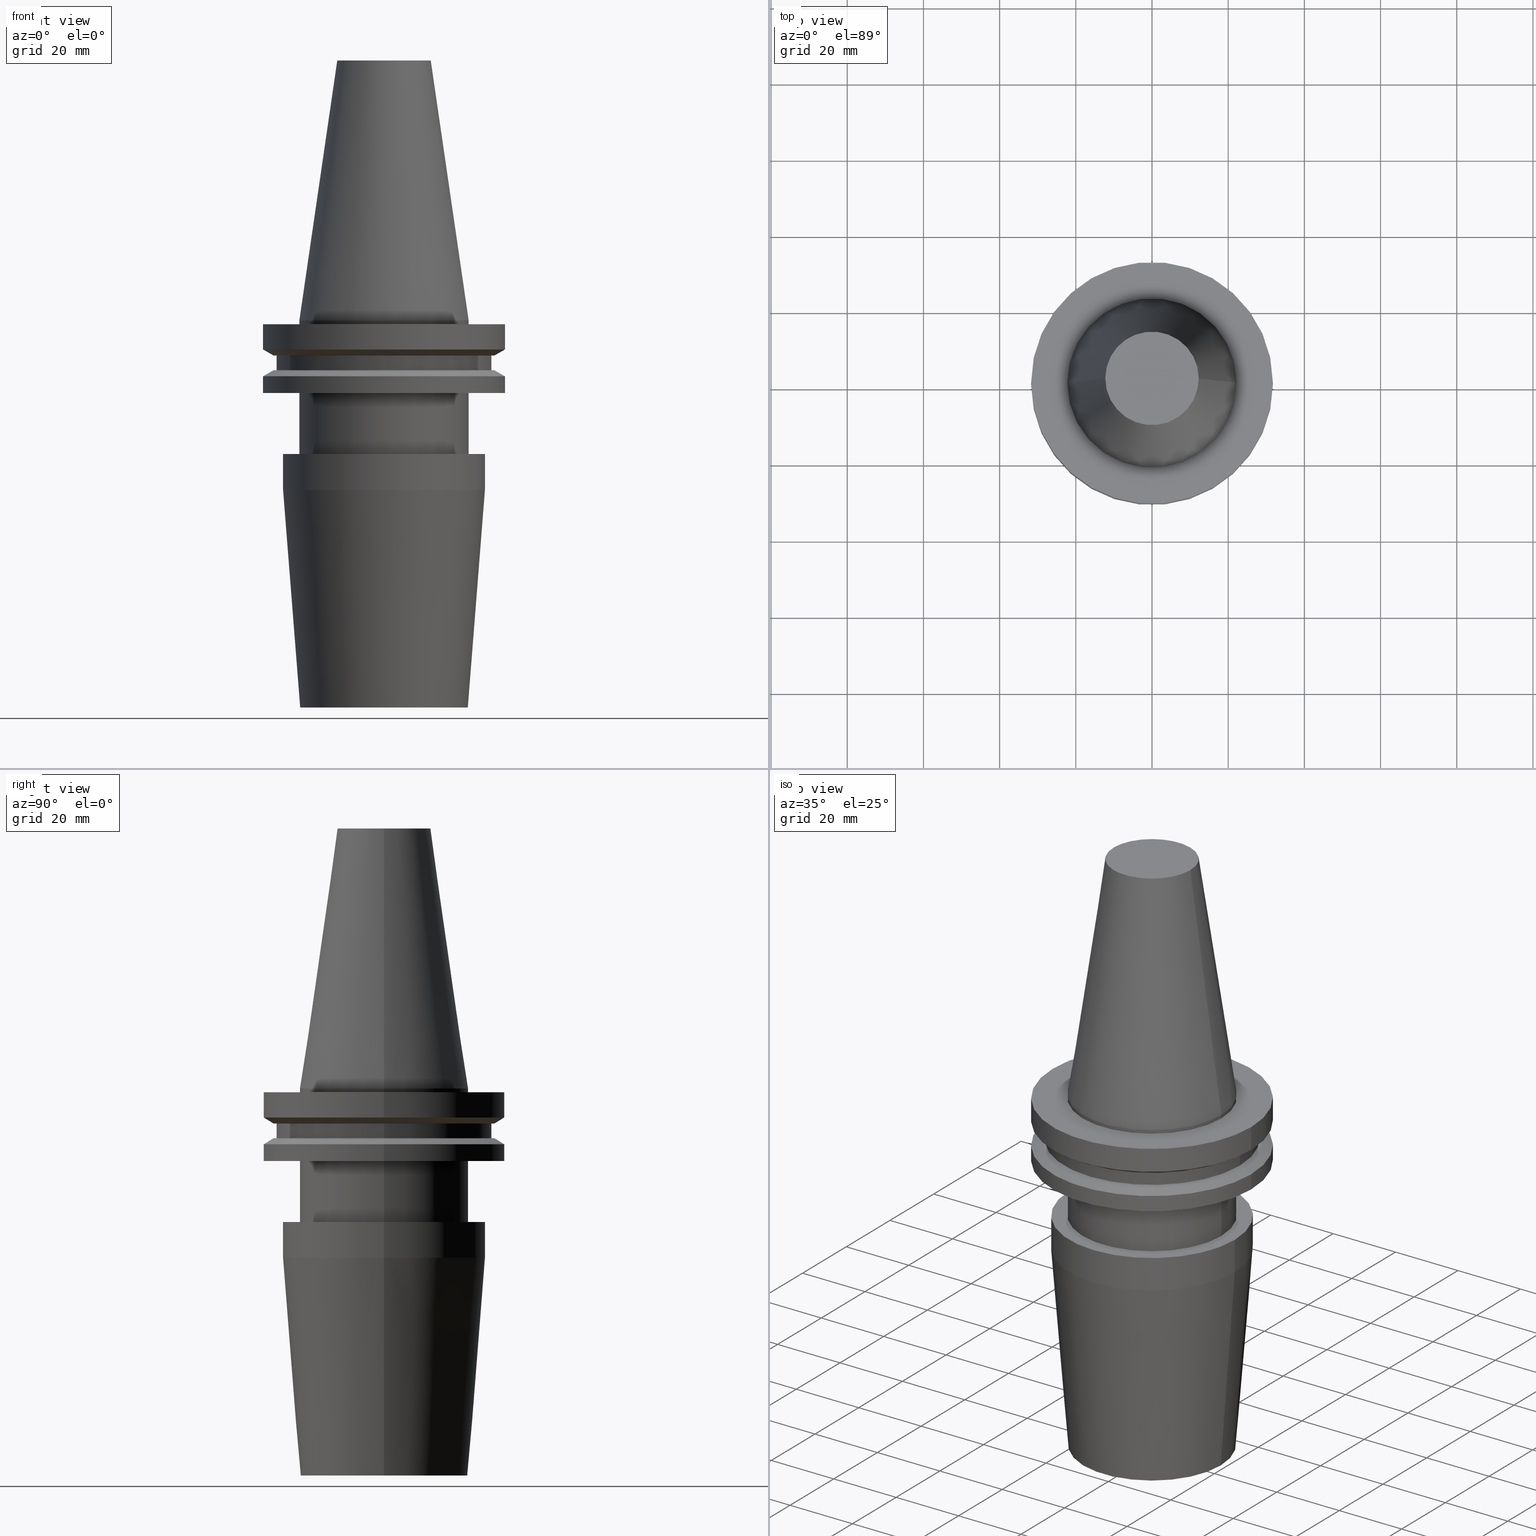
[diagram: canonical four-view strip — front | top / right | iso, engineering-drawing reading convention]
A machine part, canonical four-view strip (front | top / right | iso — engineering-drawing reading convention). The complete STEP part file that produces these views, byte-faithful:
ISO-10303-21;
HEADER;
FILE_DESCRIPTION (( 'STEP AP203' ),
    '1' );
FILE_NAME ('BCV40-SF1_000-4.STEP',
    '2022-02-23T17:24:44',
    ( '' ),
    ( '' ),
    'SwSTEP 2.0',
    'SolidWorks 2021',
    '' );
FILE_SCHEMA (( 'CONFIG_CONTROL_DESIGN' ));
ENDSEC;

DATA;
#1 = AXIS2_PLACEMENT_3D ( 'NONE', #211, #470, #730 ) ;
#2 = PLANE ( 'NONE',  #547 ) ;
#3 = CIRCLE ( 'NONE', #535, 22.22499999999999787 ) ;
#4 = EDGE_CURVE ( 'NONE', #475, #394, #430, .T. ) ;
#5 = ORIENTED_EDGE ( 'NONE', *, *, #583, .F. ) ;
#6 = ORIENTED_EDGE ( 'NONE', *, *, #664, .F. ) ;
#7 = FACE_OUTER_BOUND ( 'NONE', #214, .T. ) ;
#8 = ORIENTED_EDGE ( 'NONE', *, *, #222, .F. ) ;
#9 = EDGE_CURVE ( 'NONE', #328, #584, #636, .T. ) ;
#10 = ORIENTED_EDGE ( 'NONE', *, *, #404, .F. ) ;
#11 = CYLINDRICAL_SURFACE ( 'NONE', #655, 22.22500000000000142 ) ;
#12 = ORIENTED_EDGE ( 'NONE', *, *, #731, .T. ) ;
#13 = EDGE_CURVE ( 'NONE', #675, #370, #593, .T. ) ;
#14 = ORIENTED_EDGE ( 'NONE', *, *, #399, .T. ) ;
#15 = APPLICATION_PROTOCOL_DEFINITION ( 'international standard', 'config_control_design', 1994, #424 ) ;
#16 = DIRECTION ( 'NONE',  ( -1.000000000000000000, 0.000000000000000000, -0.000000000000000000 ) ) ;
#17 = VECTOR ( 'NONE', #761, 1000.000000000000000 ) ;
#18 = VECTOR ( 'NONE', #58, 1000.000000000000000 ) ;
#19 = VERTEX_POINT ( 'NONE', #342 ) ;
#20 = ORIENTED_EDGE ( 'NONE', *, *, #404, .T. ) ;
#21 = DIRECTION ( 'NONE',  ( 1.000000000000000000, 0.000000000000000000, 0.000000000000000000 ) ) ;
#22 = APPROVAL ( #482, 'UNSPECIFIED' ) ;
#23 = CARTESIAN_POINT ( 'NONE',  ( -12.27178102086201150, 0.000000000000000000, 68.25000000000000000 ) ) ;
#24 = ORIENTED_EDGE ( 'NONE', *, *, #703, .T. ) ;
#25 = DIRECTION ( 'NONE',  ( 1.000000000000000000, 0.000000000000000000, 0.000000000000000000 ) ) ;
#26 = DIRECTION ( 'NONE',  ( -0.000000000000000000, -0.000000000000000000, 1.000000000000000000 ) ) ;
#27 = EDGE_LOOP ( 'NONE', ( #347, #461, #481, #83 ) ) ;
#28 = CARTESIAN_POINT ( 'NONE',  ( -22.22500000000000142, 2.721777511104992849E-15, 68.25000000000000000 ) ) ;
#29 = ADVANCED_FACE ( 'NONE', ( #541 ), #153, .T. ) ;
#30 = DIRECTION ( 'NONE',  ( 0.000000000000000000, 0.000000000000000000, -1.000000000000000000 ) ) ;
#31 = AXIS2_PLACEMENT_3D ( 'NONE', #808, #226, #425 ) ;
#32 = EDGE_CURVE ( 'NONE', #500, #543, #412, .T. ) ;
#33 = CIRCLE ( 'NONE', #102, 31.75000000000000000 ) ;
#34 = CALENDAR_DATE ( 2022, 23, 2 ) ;
#35 = CARTESIAN_POINT ( 'NONE',  ( 0.000000000000000000, 0.000000000000000000, -9.205000000000005400 ) ) ;
#36 = EDGE_CURVE ( 'NONE', #566, #588, #526, .T. ) ;
#37 = VECTOR ( 'NONE', #366, 1000.000000000000000 ) ;
#38 = DIRECTION ( 'NONE',  ( 0.000000000000000000, -0.000000000000000000, 1.000000000000000000 ) ) ;
#39 = DIRECTION ( 'NONE',  ( -0.000000000000000000, -0.000000000000000000, 1.000000000000000000 ) ) ;
#40 = VECTOR ( 'NONE', #520, 1000.000000000000000 ) ;
#41 = ORIENTED_EDGE ( 'NONE', *, *, #679, .T. ) ;
#42 = PERSON_AND_ORGANIZATION ( #341, #242 ) ;
#43 = FACE_OUTER_BOUND ( 'NONE', #204, .T. ) ;
#44 = AXIS2_PLACEMENT_3D ( 'NONE', #824, #30, #829 ) ;
#45 = FACE_OUTER_BOUND ( 'NONE', #635, .T. ) ;
#46 = COORDINATED_UNIVERSAL_TIME_OFFSET ( 6, 0, .BEHIND. ) ;
#47 = AXIS2_PLACEMENT_3D ( 'NONE', #272, #277, #223 ) ;
#48 = SECURITY_CLASSIFICATION ( '', '', #763 ) ;
#49 = CARTESIAN_POINT ( 'NONE',  ( 0.000000000000000000, 0.000000000000000000, 0.000000000000000000 ) ) ;
#50 = CC_DESIGN_PERSON_AND_ORGANIZATION_ASSIGNMENT ( #831, #694, ( #314 ) ) ;
#51 = DIRECTION ( 'NONE',  ( -0.000000000000000000, -0.000000000000000000, 1.000000000000000000 ) ) ;
#52 = VERTEX_POINT ( 'NONE', #625 ) ;
#53 = DATE_AND_TIME ( #514, #164 ) ;
#54 = CARTESIAN_POINT ( 'NONE',  ( 12.69999999999998685, 0.000000000000000000, -54.59999999999999432 ) ) ;
#55 = CARTESIAN_POINT ( 'NONE',  ( -22.22499999999999787, 2.721777511104992454E-15, -35.04999999999999716 ) ) ;
#56 = AXIS2_PLACEMENT_3D ( 'NONE', #546, #729, #402 ) ;
#57 = ORIENTED_EDGE ( 'NONE', *, *, #814, .F. ) ;
#58 = DIRECTION ( 'NONE',  ( -0.000000000000000000, -0.000000000000000000, 1.000000000000000000 ) ) ;
#59 = CARTESIAN_POINT ( 'NONE',  ( 0.000000000000000000, 0.000000000000000000, -14.65472339340266572 ) ) ;
#60 = EDGE_LOOP ( 'NONE', ( #576, #465 ) ) ;
#61 = DIRECTION ( 'NONE',  ( 0.000000000000000000, -0.000000000000000000, 1.000000000000000000 ) ) ;
#62 = CIRCLE ( 'NONE', #550, 28.17999999999999972 ) ;
#63 = DIRECTION ( 'NONE',  ( 1.000000000000000000, 0.000000000000000000, 0.000000000000000000 ) ) ;
#64 = ORIENTED_EDGE ( 'NONE', *, *, #839, .F. ) ;
#65 = DIRECTION ( 'NONE',  ( -0.000000000000000000, -0.000000000000000000, 1.000000000000000000 ) ) ;
#66 = CARTESIAN_POINT ( 'NONE',  ( 22.00000000000000000, 0.000000000000000000, -101.5999999999999943 ) ) ;
#67 = ORIENTED_EDGE ( 'NONE', *, *, #339, .F. ) ;
#68 = AXIS2_PLACEMENT_3D ( 'NONE', #237, #433, #369 ) ;
#69 = CARTESIAN_POINT ( 'NONE',  ( -22.22500000000000142, 2.721777511104992849E-15, 68.25000000000000000 ) ) ;
#70 = CONICAL_SURFACE ( 'NONE', #44, 31.75000000000000000, 1.047197551196597853 ) ;
#71 = FACE_OUTER_BOUND ( 'NONE', #86, .T. ) ;
#72 = DIRECTION ( 'NONE',  ( -0.000000000000000000, -0.000000000000000000, 1.000000000000000000 ) ) ;
#73 = AXIS2_PLACEMENT_3D ( 'NONE', #504, #627, #97 ) ;
#74 = CARTESIAN_POINT ( 'NONE',  ( 0.000000000000000000, 0.000000000000000000, -13.05499999999999794 ) ) ;
#75 = CIRCLE ( 'NONE', #47, 26.50000000000000000 ) ;
#76 = EDGE_CURVE ( 'NONE', #358, #798, #108, .T. ) ;
#77 = CARTESIAN_POINT ( 'NONE',  ( 0.000000000000000000, 28.97919780457007732, -9.204999999999996518 ) ) ;
#78 = VERTEX_POINT ( 'NONE', #175 ) ;
#79 = ORIENTED_EDGE ( 'NONE', *, *, #431, .T. ) ;
#80 = DIRECTION ( 'NONE',  ( -0.000000000000000000, -0.000000000000000000, 1.000000000000000000 ) ) ;
#81 = ADVANCED_FACE ( 'NONE', ( #568 ), #414, .T. ) ;
#82 = ORIENTED_EDGE ( 'NONE', *, *, #703, .F. ) ;
#83 = ORIENTED_EDGE ( 'NONE', *, *, #121, .F. ) ;
#84 = LINE ( 'NONE', #157, #88 ) ;
#85 = ORIENTED_EDGE ( 'NONE', *, *, #739, .T. ) ;
#86 = EDGE_LOOP ( 'NONE', ( #238, #154 ) ) ;
#87 = DIRECTION ( 'NONE',  ( 1.000000000000000000, 0.000000000000000000, 0.000000000000000000 ) ) ;
#88 = VECTOR ( 'NONE', #147, 999.9999999999998863 ) ;
#89 = CIRCLE ( 'NONE', #448, 31.75000000000000000 ) ;
#90 = EDGE_LOOP ( 'NONE', ( #834, #853, #280, #557 ) ) ;
#91 = ADVANCED_FACE ( 'NONE', ( #45 ), #562, .T. ) ;
#92 = CARTESIAN_POINT ( 'NONE',  ( -26.49999999999999645, 3.245314017740485370E-15, -44.42207868720777952 ) ) ;
#93 = CARTESIAN_POINT ( 'NONE',  ( 0.000000000000000000, 0.000000000000000000, -9.205000000000005400 ) ) ;
#94 = ORIENTED_EDGE ( 'NONE', *, *, #828, .T. ) ;
#95 = DIRECTION ( 'NONE',  ( -0.000000000000000000, -0.000000000000000000, 1.000000000000000000 ) ) ;
#96 = EDGE_CURVE ( 'NONE', #798, #678, #634, .T. ) ;
#97 = DIRECTION ( 'NONE',  ( 1.000000000000000000, 0.000000000000000000, 0.000000000000000000 ) ) ;
#98 = ORIENTED_EDGE ( 'NONE', *, *, #399, .F. ) ;
#99 = PERSON_AND_ORGANIZATION_ROLE ( 'creator' ) ;
#100 = DIRECTION ( 'NONE',  ( -0.000000000000000000, -0.000000000000000000, 1.000000000000000000 ) ) ;
#101 = CIRCLE ( 'NONE', #813, 12.69999999999999218 ) ;
#102 = AXIS2_PLACEMENT_3D ( 'NONE', #747, #559, #544 ) ;
#103 = CARTESIAN_POINT ( 'NONE',  ( 0.000000000000000000, 0.000000000000000000, -54.59999999999999432 ) ) ;
#104 = UNCERTAINTY_MEASURE_WITH_UNIT (LENGTH_MEASURE( 1.000000000000000082E-05 ), #495, 'distance_accuracy_value', 'NONE');
#105 = DATE_AND_TIME ( #510, #498 ) ;
#106 = AXIS2_PLACEMENT_3D ( 'NONE', #684, #469, #140 ) ;
#107 = CARTESIAN_POINT ( 'NONE',  ( 22.22500000000000142, 0.000000000000000000, 68.25000000000000000 ) ) ;
#108 = CIRCLE ( 'NONE', #68, 28.17999999999999972 ) ;
#109 = FACE_OUTER_BOUND ( 'NONE', #413, .T. ) ;
#110 = CONICAL_SURFACE ( 'NONE', #706, 28.97919780457007732, 1.047197551196598297 ) ;
#111 = APPROVAL_DATE_TIME ( #835, #259 ) ;
#112 = EDGE_CURVE ( 'NONE', #530, #543, #633, .T. ) ;
#113 = CARTESIAN_POINT ( 'NONE',  ( 31.75000000000000000, 0.000000000000000000, -14.65472339340266572 ) ) ;
#114 = AXIS2_PLACEMENT_3D ( 'NONE', #692, #360, #240 ) ;
#115 = CARTESIAN_POINT ( 'NONE',  ( -12.69999999999999218, 1.555301434917137644E-15, -101.5999999999999943 ) ) ;
#116 = CONICAL_SURFACE ( 'NONE', #446, 22.22500000000000142, 0.1448138465474119174 ) ;
#117 = ORIENTED_EDGE ( 'NONE', *, *, #152, .F. ) ;
#118 = DATE_AND_TIME ( #34, #773 ) ;
#119 = VECTOR ( 'NONE', #338, 1000.000000000000000 ) ;
#120 = FACE_OUTER_BOUND ( 'NONE', #170, .T. ) ;
#121 = EDGE_CURVE ( 'NONE', #52, #793, #767, .T. ) ;
#122 = DIRECTION ( 'NONE',  ( 1.000000000000000000, 0.000000000000000000, 0.000000000000000000 ) ) ;
#123 = ORIENTED_EDGE ( 'NONE', *, *, #166, .T. ) ;
#124 = DIRECTION ( 'NONE',  ( -0.000000000000000000, -0.000000000000000000, 1.000000000000000000 ) ) ;
#125 = EDGE_CURVE ( 'NONE', #258, #386, #156, .T. ) ;
#126 = CC_DESIGN_DATE_AND_TIME_ASSIGNMENT ( #316, #321, ( #180 ) ) ;
#127 = CARTESIAN_POINT ( 'NONE',  ( -22.00000000000000000, 2.694222958124176809E-15, -101.5999999999999943 ) ) ;
#128 = AXIS2_PLACEMENT_3D ( 'NONE', #695, #302, #630 ) ;
#129 = ORIENTED_EDGE ( 'NONE', *, *, #794, .T. ) ;
#130 = LINE ( 'NONE', #727, #842 ) ;
#131 = CARTESIAN_POINT ( 'NONE',  ( 0.000000000000000000, 0.000000000000000000, -35.04999999999999716 ) ) ;
#132 = EDGE_LOOP ( 'NONE', ( #85, #79, #291, #598 ) ) ;
#133 = DIRECTION ( 'NONE',  ( 1.000000000000000000, 0.000000000000000000, 0.000000000000000000 ) ) ;
#134 = AXIS2_PLACEMENT_3D ( 'NONE', #49, #854, #267 ) ;
#135 = VECTOR ( 'NONE', #620, 1000.000000000000000 ) ;
#136 = DIRECTION ( 'NONE',  ( -1.000000000000000000, 0.000000000000000000, 0.000000000000000000 ) ) ;
#137 = EDGE_LOOP ( 'NONE', ( #306, #199 ) ) ;
#138 = DIRECTION ( 'NONE',  ( -0.000000000000000000, -0.000000000000000000, 1.000000000000000000 ) ) ;
#139 = CYLINDRICAL_SURFACE ( 'NONE', #602, 31.75000000000000000 ) ;
#140 = DIRECTION ( 'NONE',  ( 1.000000000000000000, 0.000000000000000000, 0.000000000000000000 ) ) ;
#141 = DIRECTION ( 'NONE',  ( 1.000000000000000000, 0.000000000000000000, 0.000000000000000000 ) ) ;
#142 = ADVANCED_FACE ( 'NONE', ( #575 ), #70, .T. ) ;
#143 = DIRECTION ( 'NONE',  ( -0.000000000000000000, -0.000000000000000000, 1.000000000000000000 ) ) ;
#144 = ORIENTED_EDGE ( 'NONE', *, *, #36, .T. ) ;
#145 = CIRCLE ( 'NONE', #241, 28.97919780457007732 ) ;
#146 = EDGE_CURVE ( 'NONE', #543, #530, #748, .T. ) ;
#147 = DIRECTION ( 'NONE',  ( 0.1443082272672999711, 1.767266086135276757E-17, -0.9895327864921755756 ) ) ;
#148 = ORIENTED_EDGE ( 'NONE', *, *, #273, .F. ) ;
#149 = ORIENTED_EDGE ( 'NONE', *, *, #112, .T. ) ;
#150 = MECHANICAL_CONTEXT ( 'NONE', #376, 'mechanical' ) ;
#151 = LINE ( 'NONE', #734, #287 ) ;
#152 = EDGE_CURVE ( 'NONE', #357, #500, #708, .T. ) ;
#153 = CONICAL_SURFACE ( 'NONE', #849, 22.00000000000000000, 0.07853981633973651511 ) ;
#154 = ORIENTED_EDGE ( 'NONE', *, *, #125, .F. ) ;
#155 = ORIENTED_EDGE ( 'NONE', *, *, #36, .F. ) ;
#156 = CIRCLE ( 'NONE', #745, 28.97919780457007732 ) ;
#157 = CARTESIAN_POINT ( 'NONE',  ( 22.22500000000000142, 2.721777511104992849E-15, 0.000000000000000000 ) ) ;
#158 = ORIENTED_EDGE ( 'NONE', *, *, #4, .F. ) ;
#159 = ORIENTED_EDGE ( 'NONE', *, *, #9, .T. ) ;
#160 = DIRECTION ( 'NONE',  ( 1.000000000000000000, 0.000000000000000000, 0.000000000000000000 ) ) ;
#161 = AXIS2_PLACEMENT_3D ( 'NONE', #643, #769, #198 ) ;
#162 = CARTESIAN_POINT ( 'NONE',  ( -31.75000000000000000, 3.888253587292846476E-15, -1.000000000000000888 ) ) ;
#163 = AXIS2_PLACEMENT_3D ( 'NONE', #419, #356, #16 ) ;
#164 = LOCAL_TIME ( 11, 24, 44.00000000000000000, #645 ) ;
#165 = DIRECTION ( 'NONE',  ( 1.000000000000000000, 0.000000000000000000, 0.000000000000000000 ) ) ;
#166 = EDGE_CURVE ( 'NONE', #320, #690, #600, .T. ) ;
#167 = VERTEX_POINT ( 'NONE', #428 ) ;
#168 = ADVANCED_FACE ( 'NONE', ( #762 ), #564, .T. ) ;
#169 = DIRECTION ( 'NONE',  ( -0.000000000000000000, -0.000000000000000000, 1.000000000000000000 ) ) ;
#170 = EDGE_LOOP ( 'NONE', ( #64, #755, #802, #613 ) ) ;
#171 = APPROVAL_STATUS ( 'not_yet_approved' ) ;
#172 = ADVANCED_FACE ( 'NONE', ( #689 ), #110, .T. ) ;
#173 = CARTESIAN_POINT ( 'NONE',  ( 12.69999999999998863, 0.000000000000000000, 0.000000000000000000 ) ) ;
#174 = ADVANCED_FACE ( 'NONE', ( #757 ), #324, .T. ) ;
#175 = CARTESIAN_POINT ( 'NONE',  ( 22.00000000000000000, 0.000000000000000000, -101.5999999999999943 ) ) ;
#176 = CIRCLE ( 'NONE', #393, 22.22499999999999787 ) ;
#177 = AXIS2_PLACEMENT_3D ( 'NONE', #225, #95, #676 ) ;
#178 = CARTESIAN_POINT ( 'NONE',  ( 0.000000000000000000, 0.000000000000000000, 68.25000000000000000 ) ) ;
#179 = DIRECTION ( 'NONE',  ( -1.000000000000000000, 0.000000000000000000, 0.000000000000000000 ) ) ;
#180 = PRODUCT_DEFINITION ( 'UNKNOWN', '', #314, #248 ) ;
#181 = APPROVAL_STATUS ( 'not_yet_approved' ) ;
#182 = DIRECTION ( 'NONE',  ( 1.000000000000000000, 0.000000000000000000, 0.000000000000000000 ) ) ;
#183 = CARTESIAN_POINT ( 'NONE',  ( 0.000000000000000000, 0.000000000000000000, 68.25000000000000000 ) ) ;
#184 = CARTESIAN_POINT ( 'NONE',  ( 0.000000000000000000, 31.74999999999999289, -19.04999999999999716 ) ) ;
#185 = CARTESIAN_POINT ( 'NONE',  ( 0.000000000000000000, 0.000000000000000000, 0.000000000000000000 ) ) ;
#186 = VECTOR ( 'NONE', #411, 1000.000000000000000 ) ;
#187 = VERTEX_POINT ( 'NONE', #439 ) ;
#188 = APPROVAL_PERSON_ORGANIZATION ( #549, #22, #418 ) ;
#189 = ADVANCED_FACE ( 'NONE', ( #109 ), #516, .F. ) ;
#190 = DIRECTION ( 'NONE',  ( 1.000000000000000000, 0.000000000000000000, 0.000000000000000000 ) ) ;
#191 = EDGE_CURVE ( 'NONE', #187, #473, #840, .T. ) ;
#192 = DIRECTION ( 'NONE',  ( 0.000000000000000000, 0.000000000000000000, -1.000000000000000000 ) ) ;
#193 = ORIENTED_EDGE ( 'NONE', *, *, #647, .T. ) ;
#194 = LINE ( 'NONE', #69, #381 ) ;
#195 = CARTESIAN_POINT ( 'NONE',  ( 0.000000000000000000, 0.000000000000000000, -9.205000000000005400 ) ) ;
#196 = EDGE_LOOP ( 'NONE', ( #12, #554, #505, #10 ) ) ;
#197 = FACE_OUTER_BOUND ( 'NONE', #137, .T. ) ;
#198 = DIRECTION ( 'NONE',  ( 1.000000000000000000, 0.000000000000000000, 0.000000000000000000 ) ) ;
#199 = ORIENTED_EDGE ( 'NONE', *, *, #552, .F. ) ;
#200 = LINE ( 'NONE', #523, #355 ) ;
#201 = AXIS2_PLACEMENT_3D ( 'NONE', #518, #438, #255 ) ;
#202 = AXIS2_PLACEMENT_3D ( 'NONE', #396, #850, #25 ) ;
#203 = LINE ( 'NONE', #612, #186 ) ;
#204 = EDGE_LOOP ( 'NONE', ( #266, #723, #538, #662 ) ) ;
#205 = CC_DESIGN_PERSON_AND_ORGANIZATION_ASSIGNMENT ( #577, #304, ( #314 ) ) ;
#206 = DIRECTION ( 'NONE',  ( 1.000000000000000000, 0.000000000000000000, 0.000000000000000000 ) ) ;
#207 = DIRECTION ( 'NONE',  ( 0.000000000000000000, -0.000000000000000000, 1.000000000000000000 ) ) ;
#208 = EDGE_LOOP ( 'NONE', ( #746, #821 ) ) ;
#209 = EDGE_CURVE ( 'NONE', #509, #784, #807, .T. ) ;
#210 = EDGE_LOOP ( 'NONE', ( #649, #809, #742, #522 ) ) ;
#211 = CARTESIAN_POINT ( 'NONE',  ( 0.000000000000000000, 0.000000000000000000, -44.42207868720777952 ) ) ;
#212 = CARTESIAN_POINT ( 'NONE',  ( 28.97919780457008088, 3.718590885307660666E-15, -13.05499999999999794 ) ) ;
#213 = ORIENTED_EDGE ( 'NONE', *, *, #846, .T. ) ;
#214 = EDGE_LOOP ( 'NONE', ( #159, #290 ) ) ;
#215 = DIRECTION ( 'NONE',  ( 0.000000000000000000, 0.000000000000000000, 1.000000000000000000 ) ) ;
#216 = VECTOR ( 'NONE', #715, 1000.000000000000000 ) ;
#217 = AXIS2_PLACEMENT_3D ( 'NONE', #390, #585, #654 ) ;
#218 = CARTESIAN_POINT ( 'NONE',  ( 0.000000000000000000, 0.000000000000000000, 68.25000000000000000 ) ) ;
#219 = VERTEX_POINT ( 'NONE', #55 ) ;
#220 = ORIENTED_EDGE ( 'NONE', *, *, #552, .T. ) ;
#221 = CARTESIAN_POINT ( 'NONE',  ( -28.17999999999999972, 3.451054679997241634E-15, 68.25000000000000000 ) ) ;
#222 = EDGE_CURVE ( 'NONE', #610, #475, #452, .T. ) ;
#223 = DIRECTION ( 'NONE',  ( 1.000000000000000000, 0.000000000000000000, 0.000000000000000000 ) ) ;
#224 = EDGE_LOOP ( 'NONE', ( #6, #737 ) ) ;
#225 = CARTESIAN_POINT ( 'NONE',  ( 0.000000000000000000, 0.000000000000000000, 68.25000000000000000 ) ) ;
#226 = DIRECTION ( 'NONE',  ( -0.000000000000000000, -0.000000000000000000, 1.000000000000000000 ) ) ;
#227 = ORIENTED_EDGE ( 'NONE', *, *, #166, .F. ) ;
#228 = CARTESIAN_POINT ( 'NONE',  ( 0.000000000000000000, 0.000000000000000000, 68.25000000000000000 ) ) ;
#229 = AXIS2_PLACEMENT_3D ( 'NONE', #372, #245, #638 ) ;
#230 = AXIS2_PLACEMENT_3D ( 'NONE', #611, #626, #624 ) ;
#231 = CARTESIAN_POINT ( 'NONE',  ( 0.000000000000000000, 0.000000000000000000, -19.04999999999999716 ) ) ;
#232 = VERTEX_POINT ( 'NONE', #247 ) ;
#233 = CARTESIAN_POINT ( 'NONE',  ( -31.75000000000000000, 3.888253587292846476E-15, -14.65472339340266572 ) ) ;
#234 = CARTESIAN_POINT ( 'NONE',  ( 0.000000000000000000, 0.000000000000000000, 68.25000000000000000 ) ) ;
#235 = SHAPE_DEFINITION_REPRESENTATION ( #558, #377 ) ;
#236 = EDGE_CURVE ( 'NONE', #78, #394, #397, .T. ) ;
#237 = CARTESIAN_POINT ( 'NONE',  ( 0.000000000000000000, 0.000000000000000000, -13.05499999999999794 ) ) ;
#238 = ORIENTED_EDGE ( 'NONE', *, *, #279, .F. ) ;
#239 = PLANE ( 'NONE',  #855 ) ;
#240 = DIRECTION ( 'NONE',  ( 1.000000000000000000, 0.000000000000000000, 0.000000000000000000 ) ) ;
#241 = AXIS2_PLACEMENT_3D ( 'NONE', #195, #459, #651 ) ;
#242 = ORGANIZATION ( 'UNSPECIFIED', 'UNSPECIFIED', '' ) ;
#243 = EDGE_LOOP ( 'NONE', ( #123, #94, #429, #801 ) ) ;
#244 = COORDINATED_UNIVERSAL_TIME_OFFSET ( 6, 0, .BEHIND. ) ;
#245 = DIRECTION ( 'NONE',  ( -0.000000000000000000, -0.000000000000000000, 1.000000000000000000 ) ) ;
#246 = EDGE_CURVE ( 'NONE', #78, #610, #661, .T. ) ;
#247 = CARTESIAN_POINT ( 'NONE',  ( -28.17999999999999972, 3.451054679997241634E-15, -9.204999999999991189 ) ) ;
#248 = DESIGN_CONTEXT ( 'detailed design', #424, 'design' ) ;
#249 = EDGE_LOOP ( 'NONE', ( #148, #346, #14, #213 ) ) ;
#250 = PERSON_AND_ORGANIZATION ( #341, #242 ) ;
#251 = DIRECTION ( 'NONE',  ( 1.000000000000000000, 0.000000000000000000, 0.000000000000000000 ) ) ;
#252 = CYLINDRICAL_SURFACE ( 'NONE', #422, 12.69999999999998863 ) ;
#253 = EDGE_LOOP ( 'NONE', ( #315, #617 ) ) ;
#254 = EDGE_CURVE ( 'NONE', #219, #700, #176, .T. ) ;
#255 = DIRECTION ( 'NONE',  ( 1.000000000000000000, 0.000000000000000000, 0.000000000000000000 ) ) ;
#256 = CARTESIAN_POINT ( 'NONE',  ( 26.49999999999999645, 0.000000000000000000, 0.000000000000000000 ) ) ;
#257 = AXIS2_PLACEMENT_3D ( 'NONE', #847, #587, #385 ) ;
#258 = VERTEX_POINT ( 'NONE', #524 ) ;
#259 = APPROVAL ( #181, 'UNSPECIFIED' ) ;
#260 = CARTESIAN_POINT ( 'NONE',  ( 28.97919780457007732, 0.000000000000000000, -9.205000000000005400 ) ) ;
#261 = DIRECTION ( 'NONE',  ( 0.07845909572783665853, 0.000000000000000000, 0.9969173337331286300 ) ) ;
#262 = EDGE_LOOP ( 'NONE', ( #332, #155, #361, #364 ) ) ;
#263 = DIRECTION ( 'NONE',  ( -0.000000000000000000, -0.000000000000000000, 1.000000000000000000 ) ) ;
#264 = AXIS2_PLACEMENT_3D ( 'NONE', #754, #100, #702 ) ;
#265 = FACE_OUTER_BOUND ( 'NONE', #262, .T. ) ;
#266 = ORIENTED_EDGE ( 'NONE', *, *, #756, .F. ) ;
#267 = DIRECTION ( 'NONE',  ( 1.000000000000000000, 0.000000000000000000, 0.000000000000000000 ) ) ;
#268 = CARTESIAN_POINT ( 'NONE',  ( 26.49999999999999645, 0.000000000000000000, -44.42207868720777952 ) ) ;
#269 = ORIENTED_EDGE ( 'NONE', *, *, #209, .F. ) ;
#270 = CARTESIAN_POINT ( 'NONE',  ( -28.97919780457008088, 0.000000000000000000, -13.05499999999999794 ) ) ;
#271 = AXIS2_PLACEMENT_3D ( 'NONE', #764, #293, #450 ) ;
#272 = CARTESIAN_POINT ( 'NONE',  ( 0.000000000000000000, 0.000000000000000000, -35.04999999999999716 ) ) ;
#273 = EDGE_CURVE ( 'NONE', #370, #509, #778, .T. ) ;
#274 = ORIENTED_EDGE ( 'NONE', *, *, #359, .T. ) ;
#275 = DIRECTION ( 'NONE',  ( -0.000000000000000000, -0.000000000000000000, 1.000000000000000000 ) ) ;
#276 = AXIS2_PLACEMENT_3D ( 'NONE', #59, #391, #319 ) ;
#277 = DIRECTION ( 'NONE',  ( -0.000000000000000000, -0.000000000000000000, 1.000000000000000000 ) ) ;
#278 = VERTEX_POINT ( 'NONE', #843 ) ;
#279 = EDGE_CURVE ( 'NONE', #386, #258, #145, .T. ) ;
#280 = ORIENTED_EDGE ( 'NONE', *, *, #739, .F. ) ;
#281 = CC_DESIGN_PERSON_AND_ORGANIZATION_ASSIGNMENT ( #639, #99, ( #180 ) ) ;
#282 = LINE ( 'NONE', #743, #815 ) ;
#283 = CYLINDRICAL_SURFACE ( 'NONE', #696, 22.22500000000000142 ) ;
#284 = ORIENTED_EDGE ( 'NONE', *, *, #711, .T. ) ;
#285 = ORIENTED_EDGE ( 'NONE', *, *, #427, .T. ) ;
#286 = CARTESIAN_POINT ( 'NONE',  ( 0.000000000000000000, 0.000000000000000000, -35.04999999999999716 ) ) ;
#287 = VECTOR ( 'NONE', #479, 1000.000000000000000 ) ;
#288 = CIRCLE ( 'NONE', #230, 26.50000000000000000 ) ;
#289 = FACE_OUTER_BOUND ( 'NONE', #614, .T. ) ;
#290 = ORIENTED_EDGE ( 'NONE', *, *, #466, .T. ) ;
#291 = ORIENTED_EDGE ( 'NONE', *, *, #823, .F. ) ;
#292 = FACE_OUTER_BOUND ( 'NONE', #486, .T. ) ;
#293 = DIRECTION ( 'NONE',  ( -0.000000000000000000, -0.000000000000000000, 1.000000000000000000 ) ) ;
#294 = ORIENTED_EDGE ( 'NONE', *, *, #851, .T. ) ;
#295 = EDGE_LOOP ( 'NONE', ( #117, #24, #149, #816 ) ) ;
#296 = CARTESIAN_POINT ( 'NONE',  ( 28.17999999999999972, 0.000000000000000000, -13.05499999999999794 ) ) ;
#297 = CARTESIAN_POINT ( 'NONE',  ( 28.17999999999999972, 0.000000000000000000, 68.25000000000000000 ) ) ;
#298 = ORIENTED_EDGE ( 'NONE', *, *, #647, .F. ) ;
#299 = DIRECTION ( 'NONE',  ( -0.000000000000000000, -0.000000000000000000, 1.000000000000000000 ) ) ;
#300 = CIRCLE ( 'NONE', #365, 31.74999999999999289 ) ;
#301 = APPROVAL_PERSON_ORGANIZATION ( #42, #573, #374 ) ;
#302 = DIRECTION ( 'NONE',  ( -0.000000000000000000, -0.000000000000000000, 1.000000000000000000 ) ) ;
#303 = ADVANCED_FACE ( 'NONE', ( #582 ), #327, .T. ) ;
#304 = PERSON_AND_ORGANIZATION_ROLE ( 'creator' ) ;
#305 = DIRECTION ( 'NONE',  ( 1.000000000000000000, 0.000000000000000000, 0.000000000000000000 ) ) ;
#306 = ORIENTED_EDGE ( 'NONE', *, *, #246, .F. ) ;
#307 = LINE ( 'NONE', #310, #572 ) ;
#308 = DIRECTION ( 'NONE',  ( 1.000000000000000000, 0.000000000000000000, 0.000000000000000000 ) ) ;
#309 = COORDINATED_UNIVERSAL_TIME_OFFSET ( 6, 0, .BEHIND. ) ;
#310 = CARTESIAN_POINT ( 'NONE',  ( -22.22500000000000142, 0.000000000000000000, 0.000000000000000000 ) ) ;
#311 = CC_DESIGN_PERSON_AND_ORGANIZATION_ASSIGNMENT ( #250, #440, ( #48 ) ) ;
#312 = DIRECTION ( 'NONE',  ( -0.000000000000000000, -0.000000000000000000, 1.000000000000000000 ) ) ;
#313 = CIRCLE ( 'NONE', #641, 22.00000000000000000 ) ;
#314 = PRODUCT_DEFINITION_FORMATION_WITH_SPECIFIED_SOURCE ( 'ANY', '', #817, .NOT_KNOWN. ) ;
#315 = ORIENTED_EDGE ( 'NONE', *, *, #823, .T. ) ;
#316 = DATE_AND_TIME ( #818, #670 ) ;
#317 = DIRECTION ( 'NONE',  ( 0.000000000000000000, 0.000000000000000000, -1.000000000000000000 ) ) ;
#318 = ADVANCED_FACE ( 'NONE', ( #765 ), #529, .T. ) ;
#319 = DIRECTION ( 'NONE',  ( 1.000000000000000000, 0.000000000000000000, 0.000000000000000000 ) ) ;
#320 = VERTEX_POINT ( 'NONE', #456 ) ;
#321 = DATE_TIME_ROLE ( 'creation_date' ) ;
#322 = CARTESIAN_POINT ( 'NONE',  ( 0.000000000000000000, 0.000000000000000000, 0.000000000000000000 ) ) ;
#323 = CARTESIAN_POINT ( 'NONE',  ( 0.000000000000000000, 0.000000000000000000, -101.5999999999999943 ) ) ;
#324 = CONICAL_SURFACE ( 'NONE', #392, 31.75000000000000000, 1.047197551196597853 ) ;
#325 = ORIENTED_EDGE ( 'NONE', *, *, #699, .F. ) ;
#326 = LINE ( 'NONE', #260, #477 ) ;
#327 = CYLINDRICAL_SURFACE ( 'NONE', #586, 26.49999999999999645 ) ;
#328 = VERTEX_POINT ( 'NONE', #833 ) ;
#329 = ADVANCED_FACE ( 'NONE', ( #443 ), #252, .F. ) ;
#330 = DIRECTION ( 'NONE',  ( 1.000000000000000000, 0.000000000000000000, 0.000000000000000000 ) ) ;
#331 = CARTESIAN_POINT ( 'NONE',  ( 0.000000000000000000, 0.000000000000000000, 0.000000000000000000 ) ) ;
#332 = ORIENTED_EDGE ( 'NONE', *, *, #427, .F. ) ;
#333 = DIRECTION ( 'NONE',  ( -0.000000000000000000, -0.000000000000000000, 1.000000000000000000 ) ) ;
#334 = EDGE_CURVE ( 'NONE', #258, #609, #591, .T. ) ;
#335 = DIRECTION ( 'NONE',  ( 0.000000000000000000, -0.000000000000000000, 1.000000000000000000 ) ) ;
#336 = ORIENTED_EDGE ( 'NONE', *, *, #146, .F. ) ;
#337 = VECTOR ( 'NONE', #261, 1000.000000000000000 ) ;
#338 = DIRECTION ( 'NONE',  ( -0.000000000000000000, -0.000000000000000000, 1.000000000000000000 ) ) ;
#339 = EDGE_CURVE ( 'NONE', #690, #320, #380, .T. ) ;
#340 = FACE_BOUND ( 'NONE', #208, .T. ) ;
#341 = PERSON ( 'UNSPECIFIED', 'UNSPECIFIED', 'UNSPECIFIED', ('UNSPECIFIED'), ('UNSPECIFIED'), ('UNSPECIFIED') ) ;
#342 = CARTESIAN_POINT ( 'NONE',  ( 26.50000000000000000, 0.000000000000000000, -35.04999999999999716 ) ) ;
#343 = DIRECTION ( 'NONE',  ( 1.000000000000000000, 0.000000000000000000, 0.000000000000000000 ) ) ;
#344 = DIRECTION ( 'NONE',  ( 1.000000000000000000, 0.000000000000000000, 0.000000000000000000 ) ) ;
#345 = ADVANCED_FACE ( 'NONE', ( #265 ), #116, .T. ) ;
#346 = ORIENTED_EDGE ( 'NONE', *, *, #13, .F. ) ;
#347 = ORIENTED_EDGE ( 'NONE', *, *, #679, .F. ) ;
#348 = APPLICATION_PROTOCOL_DEFINITION ( 'international standard', 'config_control_design', 1994, #376 ) ;
#349 = EDGE_LOOP ( 'NONE', ( #389, #284 ) ) ;
#350 = ORIENTED_EDGE ( 'NONE', *, *, #819, .F. ) ;
#351 = PERSON_AND_ORGANIZATION ( #341, #242 ) ;
#352 = LINE ( 'NONE', #799, #685 ) ;
#353 = ORIENTED_EDGE ( 'NONE', *, *, #32, .T. ) ;
#354 = ORIENTED_EDGE ( 'NONE', *, *, #273, .T. ) ;
#355 = VECTOR ( 'NONE', #776, 1000.000000000000000 ) ;
#356 = DIRECTION ( 'NONE',  ( 0.000000000000000000, 0.000000000000000000, -1.000000000000000000 ) ) ;
#357 = VERTEX_POINT ( 'NONE', #115 ) ;
#358 = VERTEX_POINT ( 'NONE', #648 ) ;
#359 = EDGE_CURVE ( 'NONE', #394, #19, #837, .T. ) ;
#360 = DIRECTION ( 'NONE',  ( -0.000000000000000000, -0.000000000000000000, 1.000000000000000000 ) ) ;
#361 = ORIENTED_EDGE ( 'NONE', *, *, #478, .T. ) ;
#362 = DIRECTION ( 'NONE',  ( -0.000000000000000000, -0.000000000000000000, 1.000000000000000000 ) ) ;
#363 = DIRECTION ( 'NONE',  ( 1.000000000000000000, 0.000000000000000000, 0.000000000000000000 ) ) ;
#364 = ORIENTED_EDGE ( 'NONE', *, *, #561, .T. ) ;
#365 = AXIS2_PLACEMENT_3D ( 'NONE', #705, #515, #749 ) ;
#366 = DIRECTION ( 'NONE',  ( -0.000000000000000000, -0.000000000000000000, 1.000000000000000000 ) ) ;
#367 = ORIENTED_EDGE ( 'NONE', *, *, #777, .F. ) ;
#368 = DIRECTION ( 'NONE',  ( -0.000000000000000000, -0.000000000000000000, 1.000000000000000000 ) ) ;
#369 = DIRECTION ( 'NONE',  ( 1.000000000000000000, 0.000000000000000000, 0.000000000000000000 ) ) ;
#370 = VERTEX_POINT ( 'NONE', #212 ) ;
#371 = DATE_TIME_ROLE ( 'classification_date' ) ;
#372 = CARTESIAN_POINT ( 'NONE',  ( 0.000000000000000000, 0.000000000000000000, -9.204999999999991189 ) ) ;
#373 = CARTESIAN_POINT ( 'NONE',  ( 0.000000000000000000, 0.000000000000000000, -14.65472339340266572 ) ) ;
#374 = APPROVAL_ROLE ( '' ) ;
#375 = DIRECTION ( 'NONE',  ( -0.000000000000000000, -0.000000000000000000, 1.000000000000000000 ) ) ;
#376 = APPLICATION_CONTEXT ( 'configuration controlled 3d designs of mechanical parts and assemblies' ) ;
#377 = ADVANCED_BREP_SHAPE_REPRESENTATION ( 'BCV40-SF1_000-4', ( #551, #563 ), #395 ) ;
#378 = CIRCLE ( 'NONE', #31, 22.22500000000000142 ) ;
#379 = DIRECTION ( 'NONE',  ( -0.000000000000000000, -0.000000000000000000, 1.000000000000000000 ) ) ;
#380 = CIRCLE ( 'NONE', #257, 22.22500000000000142 ) ;
#381 = VECTOR ( 'NONE', #458, 1000.000000000000000 ) ;
#382 = ORIENTED_EDGE ( 'NONE', *, *, #279, .T. ) ;
#383 = CARTESIAN_POINT ( 'NONE',  ( 0.000000000000000000, 0.000000000000000000, -9.205000000000005400 ) ) ;
#384 = EDGE_CURVE ( 'NONE', #653, #19, #75, .T. ) ;
#385 = DIRECTION ( 'NONE',  ( 1.000000000000000000, 0.000000000000000000, 0.000000000000000000 ) ) ;
#386 = VERTEX_POINT ( 'NONE', #683 ) ;
#387 = CARTESIAN_POINT ( 'NONE',  ( -31.75000000000000000, 3.888253587292846476E-15, 68.25000000000000000 ) ) ;
#388 = DIRECTION ( 'NONE',  ( 1.000000000000000000, 0.000000000000000000, 0.000000000000000000 ) ) ;
#389 = ORIENTED_EDGE ( 'NONE', *, *, #13, .T. ) ;
#390 = CARTESIAN_POINT ( 'NONE',  ( 0.000000000000000000, 0.000000000000000000, -7.605276606597335842 ) ) ;
#391 = DIRECTION ( 'NONE',  ( -0.000000000000000000, -0.000000000000000000, 1.000000000000000000 ) ) ;
#392 = AXIS2_PLACEMENT_3D ( 'NONE', #373, #698, #179 ) ;
#393 = AXIS2_PLACEMENT_3D ( 'NONE', #131, #379, #63 ) ;
#394 = VERTEX_POINT ( 'NONE', #268 ) ;
#395 =( GEOMETRIC_REPRESENTATION_CONTEXT ( 3 ) GLOBAL_UNCERTAINTY_ASSIGNED_CONTEXT ( ( #104 ) ) GLOBAL_UNIT_ASSIGNED_CONTEXT ( ( #495, #753, #672 ) ) REPRESENTATION_CONTEXT ( 'NONE', 'WORKASPACE' ) );
#396 = CARTESIAN_POINT ( 'NONE',  ( 0.000000000000000000, 0.000000000000000000, 0.000000000000000000 ) ) ;
#397 = LINE ( 'NONE', #66, #337 ) ;
#398 = ORIENTED_EDGE ( 'NONE', *, *, #146, .T. ) ;
#399 = EDGE_CURVE ( 'NONE', #675, #784, #352, .T. ) ;
#400 = CARTESIAN_POINT ( 'NONE',  ( 0.000000000000000000, 0.000000000000000000, -13.05499999999999794 ) ) ;
#401 = CARTESIAN_POINT ( 'NONE',  ( 0.000000000000000000, 0.000000000000000000, 68.25000000000000000 ) ) ;
#402 = DIRECTION ( 'NONE',  ( 1.000000000000000000, 0.000000000000000000, 0.000000000000000000 ) ) ;
#403 = CARTESIAN_POINT ( 'NONE',  ( 0.000000000000000000, 0.000000000000000000, -7.605276606597335842 ) ) ;
#404 = EDGE_CURVE ( 'NONE', #719, #328, #151, .T. ) ;
#405 = ADVANCED_FACE ( 'NONE', ( #804, #7 ), #472, .F. ) ;
#406 = DIRECTION ( 'NONE',  ( -0.000000000000000000, -0.000000000000000000, 1.000000000000000000 ) ) ;
#407 = ORIENTED_EDGE ( 'NONE', *, *, #478, .F. ) ;
#408 = AXIS2_PLACEMENT_3D ( 'NONE', #532, #669, #852 ) ;
#409 = CIRCLE ( 'NONE', #1, 26.49999999999999645 ) ;
#410 = ADVANCED_FACE ( 'NONE', ( #616 ), #11, .T. ) ;
#411 = DIRECTION ( 'NONE',  ( -0.000000000000000000, -0.000000000000000000, 1.000000000000000000 ) ) ;
#412 = LINE ( 'NONE', #173, #37 ) ;
#413 = EDGE_LOOP ( 'NONE', ( #336, #658 ) ) ;
#414 = CONICAL_SURFACE ( 'NONE', #128, 22.00000000000000000, 0.07853981633973651511 ) ;
#415 = PLANE ( 'NONE',  #163 ) ;
#416 = ORIENTED_EDGE ( 'NONE', *, *, #756, .T. ) ;
#417 = ORIENTED_EDGE ( 'NONE', *, *, #814, .T. ) ;
#418 = APPROVAL_ROLE ( '' ) ;
#419 = CARTESIAN_POINT ( 'NONE',  ( 0.000000000000000000, 0.000000000000000000, -35.04999999999999716 ) ) ;
#420 = EDGE_LOOP ( 'NONE', ( #693, #775, #274, #619 ) ) ;
#421 = DIRECTION ( 'NONE',  ( -0.000000000000000000, -0.000000000000000000, 1.000000000000000000 ) ) ;
#422 = AXIS2_PLACEMENT_3D ( 'NONE', #185, #774, #721 ) ;
#423 = CC_DESIGN_APPROVAL ( #573, ( #314 ) ) ;
#424 = APPLICATION_CONTEXT ( 'configuration controlled 3d designs of mechanical parts and assemblies' ) ;
#425 = DIRECTION ( 'NONE',  ( 1.000000000000000000, 0.000000000000000000, 0.000000000000000000 ) ) ;
#426 = CARTESIAN_POINT ( 'NONE',  ( 0.000000000000000000, 0.000000000000000000, 68.25000000000000000 ) ) ;
#427 = EDGE_CURVE ( 'NONE', #588, #187, #84, .T. ) ;
#428 = CARTESIAN_POINT ( 'NONE',  ( -31.74999999999999289, 3.888253587292845687E-15, -19.04999999999999716 ) ) ;
#429 = ORIENTED_EDGE ( 'NONE', *, *, #191, .F. ) ;
#430 = CIRCLE ( 'NONE', #106, 26.49999999999999645 ) ;
#431 = EDGE_CURVE ( 'NONE', #475, #653, #203, .T. ) ;
#432 = CC_DESIGN_PERSON_AND_ORGANIZATION_ASSIGNMENT ( #351, #615, ( #817 ) ) ;
#433 = DIRECTION ( 'NONE',  ( -0.000000000000000000, -0.000000000000000000, 1.000000000000000000 ) ) ;
#434 = CIRCLE ( 'NONE', #710, 31.75000000000000000 ) ;
#435 = AXIS2_PLACEMENT_3D ( 'NONE', #74, #275, #141 ) ;
#436 = ADVANCED_FACE ( 'NONE', ( #740 ), #283, .T. ) ;
#437 = DIRECTION ( 'NONE',  ( -0.000000000000000000, -0.000000000000000000, 1.000000000000000000 ) ) ;
#438 = DIRECTION ( 'NONE',  ( -0.000000000000000000, -0.000000000000000000, 1.000000000000000000 ) ) ;
#439 = CARTESIAN_POINT ( 'NONE',  ( 22.22500000000000142, 2.721777511104992849E-15, 0.000000000000000000 ) ) ;
#440 = PERSON_AND_ORGANIZATION_ROLE ( 'classification_officer' ) ;
#441 = FACE_OUTER_BOUND ( 'NONE', #579, .T. ) ;
#442 = AXIS2_PLACEMENT_3D ( 'NONE', #323, #718, #656 ) ;
#443 = FACE_OUTER_BOUND ( 'NONE', #792, .T. ) ;
#444 = ADVANCED_FACE ( 'NONE', ( #540, #545 ), #415, .F. ) ;
#445 = FACE_BOUND ( 'NONE', #224, .T. ) ;
#446 = AXIS2_PLACEMENT_3D ( 'NONE', #783, #192, #136 ) ;
#447 = DIRECTION ( 'NONE',  ( 0.8660254037844387076, 1.060575238724906915E-16, -0.4999999999999998890 ) ) ;
#448 = AXIS2_PLACEMENT_3D ( 'NONE', #403, #333, #343 ) ;
#449 = ORIENTED_EDGE ( 'NONE', *, *, #236, .T. ) ;
#450 = DIRECTION ( 'NONE',  ( 1.000000000000000000, 0.000000000000000000, 0.000000000000000000 ) ) ;
#451 = ADVANCED_FACE ( 'NONE', ( #289 ), #2, .F. ) ;
#452 = LINE ( 'NONE', #127, #40 ) ;
#453 = ORIENTED_EDGE ( 'NONE', *, *, #724, .F. ) ;
#454 = CARTESIAN_POINT ( 'NONE',  ( 31.75000000000000000, 0.000000000000000000, -7.605276606597335842 ) ) ;
#455 = ADVANCED_FACE ( 'NONE', ( #484 ), #139, .T. ) ;
#456 = CARTESIAN_POINT ( 'NONE',  ( 22.22500000000000142, 0.000000000000000000, -1.000000000000000888 ) ) ;
#457 = EDGE_LOOP ( 'NONE', ( #644, #779, #848, #453 ) ) ;
#458 = DIRECTION ( 'NONE',  ( -0.000000000000000000, -0.000000000000000000, 1.000000000000000000 ) ) ;
#459 = DIRECTION ( 'NONE',  ( -0.000000000000000000, -0.000000000000000000, 1.000000000000000000 ) ) ;
#460 = ADVANCED_FACE ( 'NONE', ( #71, #340 ), #791, .F. ) ;
#461 = ORIENTED_EDGE ( 'NONE', *, *, #254, .T. ) ;
#462 = AXIS2_PLACEMENT_3D ( 'NONE', #717, #61, #330 ) ;
#463 = CARTESIAN_POINT ( 'NONE',  ( -26.50000000000000355, 3.245314017740486159E-15, -35.04999999999999716 ) ) ;
#464 = DIRECTION ( 'NONE',  ( 0.000000000000000000, 0.000000000000000000, -1.000000000000000000 ) ) ;
#465 = ORIENTED_EDGE ( 'NONE', *, *, #492, .F. ) ;
#466 = EDGE_CURVE ( 'NONE', #584, #328, #434, .T. ) ;
#467 = CARTESIAN_POINT ( 'NONE',  ( -31.75000000000000000, 3.888253587292846476E-15, -7.605276606597335842 ) ) ;
#468 = DIRECTION ( 'NONE',  ( 1.000000000000000000, 0.000000000000000000, 0.000000000000000000 ) ) ;
#469 = DIRECTION ( 'NONE',  ( -0.000000000000000000, -0.000000000000000000, 1.000000000000000000 ) ) ;
#470 = DIRECTION ( 'NONE',  ( -0.000000000000000000, -0.000000000000000000, 1.000000000000000000 ) ) ;
#471 = ADVANCED_FACE ( 'NONE', ( #607, #581 ), #822, .F. ) ;
#472 = PLANE ( 'NONE',  #408 ) ;
#473 = VERTEX_POINT ( 'NONE', #768 ) ;
#474 = AXIS2_PLACEMENT_3D ( 'NONE', #383, #368, #646 ) ;
#475 = VERTEX_POINT ( 'NONE', #92 ) ;
#476 = DIRECTION ( 'NONE',  ( 1.000000000000000000, 0.000000000000000000, 0.000000000000000000 ) ) ;
#477 = VECTOR ( 'NONE', #590, 1000.000000000000000 ) ;
#478 = EDGE_CURVE ( 'NONE', #566, #473, #307, .T. ) ;
#479 = DIRECTION ( 'NONE',  ( -0.000000000000000000, -0.000000000000000000, 1.000000000000000000 ) ) ;
#480 = ORIENTED_EDGE ( 'NONE', *, *, #724, .T. ) ;
#481 = ORIENTED_EDGE ( 'NONE', *, *, #699, .T. ) ;
#482 = APPROVAL_STATUS ( 'not_yet_approved' ) ;
#483 = CLOSED_SHELL ( 'NONE', ( #608, #29, #303, #410, #318, #542, #513, #174, #455, #91, #668, #345, #451, #436, #471, #528, #142, #485, #503, #460, #172, #788, #405, #168, #782, #81, #732, #329, #189, #444 ) ) ;
#484 = FACE_OUTER_BOUND ( 'NONE', #741, .T. ) ;
#485 = ADVANCED_FACE ( 'NONE', ( #445, #688 ), #239, .F. ) ;
#486 = EDGE_LOOP ( 'NONE', ( #502, #480, #20, #844 ) ) ;
#487 = AXIS2_PLACEMENT_3D ( 'NONE', #426, #26, #363 ) ;
#488 = LINE ( 'NONE', #28, #135 ) ;
#489 = AXIS2_PLACEMENT_3D ( 'NONE', #234, #437, #165 ) ;
#490 = DIRECTION ( 'NONE',  ( -1.000000000000000000, 0.000000000000000000, -0.000000000000000000 ) ) ;
#491 = CARTESIAN_POINT ( 'NONE',  ( 0.000000000000000000, 0.000000000000000000, -54.59999999999999432 ) ) ;
#492 = EDGE_CURVE ( 'NONE', #167, #278, #300, .T. ) ;
#493 = ORIENTED_EDGE ( 'NONE', *, *, #561, .F. ) ;
#494 = AXIS2_PLACEMENT_3D ( 'NONE', #660, #335, #388 ) ;
#495 =( LENGTH_UNIT ( ) NAMED_UNIT ( * ) SI_UNIT ( .MILLI., .METRE. ) );
#496 = CIRCLE ( 'NONE', #229, 28.17999999999999972 ) ;
#497 = CONICAL_SURFACE ( 'NONE', #735, 22.22500000000000142, 0.1448138465474119174 ) ;
#498 = LOCAL_TIME ( 11, 24, 44.00000000000000000, #244 ) ;
#499 = DIRECTION ( 'NONE',  ( -0.000000000000000000, -0.000000000000000000, 1.000000000000000000 ) ) ;
#500 = VERTEX_POINT ( 'NONE', #640 ) ;
#501 = DIRECTION ( 'NONE',  ( -0.000000000000000000, -0.000000000000000000, 1.000000000000000000 ) ) ;
#502 = ORIENTED_EDGE ( 'NONE', *, *, #686, .F. ) ;
#503 = ADVANCED_FACE ( 'NONE', ( #120 ), #714, .T. ) ;
#504 = CARTESIAN_POINT ( 'NONE',  ( 0.000000000000000000, 0.000000000000000000, -1.000000000000000888 ) ) ;
#505 = ORIENTED_EDGE ( 'NONE', *, *, #9, .F. ) ;
#506 = COORDINATED_UNIVERSAL_TIME_OFFSET ( 6, 0, .BEHIND. ) ;
#507 = DIRECTION ( 'NONE',  ( 1.000000000000000000, 0.000000000000000000, 0.000000000000000000 ) ) ;
#508 = AXIS2_PLACEMENT_3D ( 'NONE', #77, #207, #468 ) ;
#509 = VERTEX_POINT ( 'NONE', #113 ) ;
#510 = CALENDAR_DATE ( 2022, 23, 2 ) ;
#511 = CARTESIAN_POINT ( 'NONE',  ( 0.000000000000000000, 0.000000000000000000, -101.5999999999999943 ) ) ;
#512 = DIRECTION ( 'NONE',  ( 1.000000000000000000, 0.000000000000000000, 0.000000000000000000 ) ) ;
#513 = ADVANCED_FACE ( 'NONE', ( #709 ), #836, .T. ) ;
#514 = CALENDAR_DATE ( 2022, 23, 2 ) ;
#515 = DIRECTION ( 'NONE',  ( -0.000000000000000000, -0.000000000000000000, 1.000000000000000000 ) ) ;
#516 = PLANE ( 'NONE',  #494 ) ;
#517 = EDGE_LOOP ( 'NONE', ( #681, #770, #805, #493 ) ) ;
#518 = CARTESIAN_POINT ( 'NONE',  ( 0.000000000000000000, 0.000000000000000000, 68.25000000000000000 ) ) ;
#519 = CIRCLE ( 'NONE', #574, 28.17999999999999972 ) ;
#520 = DIRECTION ( 'NONE',  ( -0.07845909572783665853, 9.608468044709093523E-18, 0.9969173337331286300 ) ) ;
#521 = LOCAL_TIME ( 11, 24, 44.00000000000000000, #506 ) ;
#522 = ORIENTED_EDGE ( 'NONE', *, *, #96, .F. ) ;
#523 = CARTESIAN_POINT ( 'NONE',  ( -12.69999999999998863, 1.555301434917137249E-15, 0.000000000000000000 ) ) ;
#524 = CARTESIAN_POINT ( 'NONE',  ( -28.97919780457007732, 3.718590885307660666E-15, -9.205000000000005400 ) ) ;
#525 = ORIENTED_EDGE ( 'NONE', *, *, #583, .T. ) ;
#526 = CIRCLE ( 'NONE', #487, 12.27178102086201150 ) ;
#527 = DIRECTION ( 'NONE',  ( -1.000000000000000000, 0.000000000000000000, 0.000000000000000000 ) ) ;
#528 = ADVANCED_FACE ( 'NONE', ( #43 ), #771, .T. ) ;
#529 = CYLINDRICAL_SURFACE ( 'NONE', #628, 31.75000000000000000 ) ;
#530 = VERTEX_POINT ( 'NONE', #701 ) ;
#531 = DIRECTION ( 'NONE',  ( 1.000000000000000000, 0.000000000000000000, 0.000000000000000000 ) ) ;
#532 = CARTESIAN_POINT ( 'NONE',  ( 0.000000000000000000, 31.75000000000000000, -0.9999999999999995559 ) ) ;
#533 = VECTOR ( 'NONE', #707, 1000.000000000000000 ) ;
#534 = EDGE_LOOP ( 'NONE', ( #766, #285, #830, #407 ) ) ;
#535 = AXIS2_PLACEMENT_3D ( 'NONE', #286, #362, #87 ) ;
#536 = CARTESIAN_POINT ( 'NONE',  ( 28.17999999999999972, 0.000000000000000000, -9.204999999999991189 ) ) ;
#537 = DIRECTION ( 'NONE',  ( 1.000000000000000000, 0.000000000000000000, 0.000000000000000000 ) ) ;
#538 = ORIENTED_EDGE ( 'NONE', *, *, #819, .T. ) ;
#539 = PLANE ( 'NONE',  #462 ) ;
#540 = FACE_BOUND ( 'NONE', #838, .T. ) ;
#541 = FACE_OUTER_BOUND ( 'NONE', #90, .T. ) ;
#542 = ADVANCED_FACE ( 'NONE', ( #441 ), #752, .T. ) ;
#543 = VERTEX_POINT ( 'NONE', #54 ) ;
#544 = DIRECTION ( 'NONE',  ( 1.000000000000000000, 0.000000000000000000, 0.000000000000000000 ) ) ;
#545 = FACE_OUTER_BOUND ( 'NONE', #253, .T. ) ;
#546 = CARTESIAN_POINT ( 'NONE',  ( 0.000000000000000000, 0.000000000000000000, -1.000000000000000888 ) ) ;
#547 = AXIS2_PLACEMENT_3D ( 'NONE', #796, #464, #553 ) ;
#548 = EDGE_LOOP ( 'NONE', ( #227, #67 ) ) ;
#549 = PERSON_AND_ORGANIZATION ( #341, #242 ) ;
#550 = AXIS2_PLACEMENT_3D ( 'NONE', #795, #263, #133 ) ;
#551 = MANIFOLD_SOLID_BREP ( 'SF', #483 ) ;
#552 = EDGE_CURVE ( 'NONE', #610, #78, #313, .T. ) ;
#553 = DIRECTION ( 'NONE',  ( -1.000000000000000000, 0.000000000000000000, -0.000000000000000000 ) ) ;
#554 = ORIENTED_EDGE ( 'NONE', *, *, #686, .T. ) ;
#555 = LINE ( 'NONE', #221, #722 ) ;
#556 = DIRECTION ( 'NONE',  ( -0.1443082272672999711, 0.000000000000000000, -0.9895327864921755756 ) ) ;
#557 = ORIENTED_EDGE ( 'NONE', *, *, #236, .F. ) ;
#558 = PRODUCT_DEFINITION_SHAPE ( 'NONE', 'NONE',  #180 ) ;
#559 = DIRECTION ( 'NONE',  ( -0.000000000000000000, -0.000000000000000000, 1.000000000000000000 ) ) ;
#560 = AXIS2_PLACEMENT_3D ( 'NONE', #231, #39, #750 ) ;
#561 = EDGE_CURVE ( 'NONE', #473, #187, #772, .T. ) ;
#562 = CYLINDRICAL_SURFACE ( 'NONE', #264, 22.22500000000000142 ) ;
#563 = AXIS2_PLACEMENT_3D ( 'NONE', #691, #215, #476 ) ;
#564 = CYLINDRICAL_SURFACE ( 'NONE', #489, 22.22500000000000142 ) ;
#565 = DIRECTION ( 'NONE',  ( -0.000000000000000000, -0.000000000000000000, 1.000000000000000000 ) ) ;
#566 = VERTEX_POINT ( 'NONE', #23 ) ;
#567 = LINE ( 'NONE', #107, #17 ) ;
#568 = FACE_OUTER_BOUND ( 'NONE', #623, .T. ) ;
#569 = AXIS2_PLACEMENT_3D ( 'NONE', #491, #169, #308 ) ;
#570 = PERSON_AND_ORGANIZATION ( #341, #242 ) ;
#571 = FACE_OUTER_BOUND ( 'NONE', #295, .T. ) ;
#572 = VECTOR ( 'NONE', #556, 999.9999999999998863 ) ;
#573 = APPROVAL ( #171, 'UNSPECIFIED' ) ;
#574 = AXIS2_PLACEMENT_3D ( 'NONE', #400, #659, #206 ) ;
#575 = FACE_OUTER_BOUND ( 'NONE', #249, .T. ) ;
#576 = ORIENTED_EDGE ( 'NONE', *, *, #794, .F. ) ;
#577 = PERSON_AND_ORGANIZATION ( #341, #242 ) ;
#578 = DIRECTION ( 'NONE',  ( -0.000000000000000000, -0.000000000000000000, 1.000000000000000000 ) ) ;
#579 = EDGE_LOOP ( 'NONE', ( #382, #716, #687, #367 ) ) ;
#580 = VECTOR ( 'NONE', #312, 1000.000000000000000 ) ;
#581 = FACE_BOUND ( 'NONE', #605, .T. ) ;
#582 = FACE_OUTER_BOUND ( 'NONE', #132, .T. ) ;
#583 = EDGE_CURVE ( 'NONE', #793, #52, #378, .T. ) ;
#584 = VERTEX_POINT ( 'NONE', #162 ) ;
#585 = DIRECTION ( 'NONE',  ( -0.000000000000000000, -0.000000000000000000, 1.000000000000000000 ) ) ;
#586 = AXIS2_PLACEMENT_3D ( 'NONE', #331, #578, #512 ) ;
#587 = DIRECTION ( 'NONE',  ( -0.000000000000000000, -0.000000000000000000, 1.000000000000000000 ) ) ;
#588 = VERTEX_POINT ( 'NONE', #632 ) ;
#589 = EDGE_CURVE ( 'NONE', #320, #187, #567, .T. ) ;
#590 = DIRECTION ( 'NONE',  ( 0.8660254037844389297, 0.000000000000000000, 0.4999999999999995004 ) ) ;
#591 = LINE ( 'NONE', #712, #533 ) ;
#592 = ORIENTED_EDGE ( 'NONE', *, *, #254, .F. ) ;
#593 = CIRCLE ( 'NONE', #780, 28.97919780457008088 ) ;
#594 = CARTESIAN_POINT ( 'NONE',  ( 22.22500000000000142, 0.000000000000000000, 68.25000000000000000 ) ) ;
#595 = EDGE_CURVE ( 'NONE', #232, #678, #496, .T. ) ;
#596 = CARTESIAN_POINT ( 'NONE',  ( 31.75000000000000000, 3.888253587292846476E-15, -14.65472339340266572 ) ) ;
#597 = AXIS2_PLACEMENT_3D ( 'NONE', #103, #565, #812 ) ;
#598 = ORIENTED_EDGE ( 'NONE', *, *, #359, .F. ) ;
#599 = CARTESIAN_POINT ( 'NONE',  ( 22.22499999999999787, 0.000000000000000000, -35.04999999999999716 ) ) ;
#600 = CIRCLE ( 'NONE', #73, 22.22500000000000142 ) ;
#601 = DIRECTION ( 'NONE',  ( 1.000000000000000000, 0.000000000000000000, 0.000000000000000000 ) ) ;
#602 = AXIS2_PLACEMENT_3D ( 'NONE', #401, #406, #537 ) ;
#603 = AXIS2_PLACEMENT_3D ( 'NONE', #682, #803, #21 ) ;
#604 = CARTESIAN_POINT ( 'NONE',  ( 0.000000000000000000, 0.000000000000000000, -101.5999999999999943 ) ) ;
#605 = EDGE_LOOP ( 'NONE', ( #525, #713 ) ) ;
#606 = FACE_BOUND ( 'NONE', #789, .T. ) ;
#607 = FACE_OUTER_BOUND ( 'NONE', #60, .T. ) ;
#608 = ADVANCED_FACE ( 'NONE', ( #571 ), #827, .F. ) ;
#609 = VERTEX_POINT ( 'NONE', #467 ) ;
#610 = VERTEX_POINT ( 'NONE', #650 ) ;
#611 = CARTESIAN_POINT ( 'NONE',  ( 0.000000000000000000, 0.000000000000000000, -35.04999999999999716 ) ) ;
#612 = CARTESIAN_POINT ( 'NONE',  ( -26.49999999999999645, 3.245314017740485370E-15, 0.000000000000000000 ) ) ;
#613 = ORIENTED_EDGE ( 'NONE', *, *, #595, .F. ) ;
#614 = EDGE_LOOP ( 'NONE', ( #144, #294 ) ) ;
#615 = PERSON_AND_ORGANIZATION_ROLE ( 'design_owner' ) ;
#616 = FACE_OUTER_BOUND ( 'NONE', #243, .T. ) ;
#617 = ORIENTED_EDGE ( 'NONE', *, *, #384, .T. ) ;
#618 = VECTOR ( 'NONE', #447, 1000.000000000000000 ) ;
#619 = ORIENTED_EDGE ( 'NONE', *, *, #384, .F. ) ;
#620 = DIRECTION ( 'NONE',  ( -0.000000000000000000, -0.000000000000000000, 1.000000000000000000 ) ) ;
#621 = CIRCLE ( 'NONE', #435, 28.97919780457008088 ) ;
#622 = DIRECTION ( 'NONE',  ( -0.000000000000000000, -0.000000000000000000, 1.000000000000000000 ) ) ;
#623 = EDGE_LOOP ( 'NONE', ( #8, #220, #449, #158 ) ) ;
#624 = DIRECTION ( 'NONE',  ( 1.000000000000000000, 0.000000000000000000, 0.000000000000000000 ) ) ;
#625 = CARTESIAN_POINT ( 'NONE',  ( -22.22500000000000142, 2.721777511104992849E-15, -19.04999999999999716 ) ) ;
#626 = DIRECTION ( 'NONE',  ( -0.000000000000000000, -0.000000000000000000, 1.000000000000000000 ) ) ;
#627 = DIRECTION ( 'NONE',  ( -0.000000000000000000, -0.000000000000000000, 1.000000000000000000 ) ) ;
#628 = AXIS2_PLACEMENT_3D ( 'NONE', #183, #51, #122 ) ;
#629 = CIRCLE ( 'NONE', #603, 31.74999999999999289 ) ;
#630 = DIRECTION ( 'NONE',  ( 1.000000000000000000, 0.000000000000000000, 0.000000000000000000 ) ) ;
#631 = APPROVAL_ROLE ( '' ) ;
#632 = CARTESIAN_POINT ( 'NONE',  ( 12.27178102086201150, 2.112318622904291439E-15, 68.25000000000000000 ) ) ;
#633 = CIRCLE ( 'NONE', #597, 12.69999999999998685 ) ;
#634 = LINE ( 'NONE', #297, #580 ) ;
#635 = EDGE_LOOP ( 'NONE', ( #417, #41, #5, #325 ) ) ;
#636 = CIRCLE ( 'NONE', #56, 31.75000000000000000 ) ;
#637 = APPROVAL_DATE_TIME ( #105, #22 ) ;
#638 = DIRECTION ( 'NONE',  ( 1.000000000000000000, 0.000000000000000000, 0.000000000000000000 ) ) ;
#639 = PERSON_AND_ORGANIZATION ( #341, #242 ) ;
#640 = CARTESIAN_POINT ( 'NONE',  ( 12.69999999999999218, 0.000000000000000000, -101.5999999999999943 ) ) ;
#641 = AXIS2_PLACEMENT_3D ( 'NONE', #511, #375, #507 ) ;
#642 = APPROVAL_PERSON_ORGANIZATION ( #570, #259, #631 ) ;
#643 = CARTESIAN_POINT ( 'NONE',  ( 0.000000000000000000, 0.000000000000000000, 0.000000000000000000 ) ) ;
#644 = ORIENTED_EDGE ( 'NONE', *, *, #334, .F. ) ;
#645 = COORDINATED_UNIVERSAL_TIME_OFFSET ( 6, 0, .BEHIND. ) ;
#646 = DIRECTION ( 'NONE',  ( 1.000000000000000000, 0.000000000000000000, 0.000000000000000000 ) ) ;
#647 = EDGE_CURVE ( 'NONE', #500, #357, #101, .T. ) ;
#648 = CARTESIAN_POINT ( 'NONE',  ( -28.17999999999999972, 3.451054679997241634E-15, -13.05499999999999794 ) ) ;
#649 = ORIENTED_EDGE ( 'NONE', *, *, #664, .T. ) ;
#650 = CARTESIAN_POINT ( 'NONE',  ( -22.00000000000000000, 2.969768487932331287E-15, -101.5999999999999943 ) ) ;
#651 = DIRECTION ( 'NONE',  ( 1.000000000000000000, 0.000000000000000000, 0.000000000000000000 ) ) ;
#652 = PRODUCT_RELATED_PRODUCT_CATEGORY ( 'detail', '', ( #817 ) ) ;
#653 = VERTEX_POINT ( 'NONE', #463 ) ;
#654 = DIRECTION ( 'NONE',  ( 1.000000000000000000, 0.000000000000000000, 0.000000000000000000 ) ) ;
#655 = AXIS2_PLACEMENT_3D ( 'NONE', #218, #665, #744 ) ;
#656 = DIRECTION ( 'NONE',  ( 1.000000000000000000, 0.000000000000000000, 0.000000000000000000 ) ) ;
#657 = CIRCLE ( 'NONE', #217, 31.75000000000000000 ) ;
#658 = ORIENTED_EDGE ( 'NONE', *, *, #112, .F. ) ;
#659 = DIRECTION ( 'NONE',  ( -0.000000000000000000, -0.000000000000000000, 1.000000000000000000 ) ) ;
#660 = CARTESIAN_POINT ( 'NONE',  ( 0.000000000000000000, 12.69999999999998685, -54.59999999999999432 ) ) ;
#661 = CIRCLE ( 'NONE', #442, 22.00000000000000000 ) ;
#662 = ORIENTED_EDGE ( 'NONE', *, *, #846, .F. ) ;
#663 = FACE_OUTER_BOUND ( 'NONE', #534, .T. ) ;
#664 = EDGE_CURVE ( 'NONE', #798, #358, #519, .T. ) ;
#665 = DIRECTION ( 'NONE',  ( -0.000000000000000000, -0.000000000000000000, 1.000000000000000000 ) ) ;
#666 = CARTESIAN_POINT ( 'NONE',  ( 0.000000000000000000, 0.000000000000000000, -13.05499999999999794 ) ) ;
#667 = CARTESIAN_POINT ( 'NONE',  ( -22.22500000000000142, 2.721777511104992849E-15, -1.000000000000000888 ) ) ;
#668 = ADVANCED_FACE ( 'NONE', ( #663 ), #497, .T. ) ;
#669 = DIRECTION ( 'NONE',  ( 0.000000000000000000, 0.000000000000000000, -1.000000000000000000 ) ) ;
#670 = LOCAL_TIME ( 11, 24, 44.00000000000000000, #46 ) ;
#671 = DIRECTION ( 'NONE',  ( 1.000000000000000000, 0.000000000000000000, 0.000000000000000000 ) ) ;
#672 =( NAMED_UNIT ( * ) SI_UNIT ( $, .STERADIAN. ) SOLID_ANGLE_UNIT ( ) );
#673 = CARTESIAN_POINT ( 'NONE',  ( 0.000000000000000000, 0.000000000000000000, 68.25000000000000000 ) ) ;
#674 = ORIENTED_EDGE ( 'NONE', *, *, #711, .F. ) ;
#675 = VERTEX_POINT ( 'NONE', #270 ) ;
#676 = DIRECTION ( 'NONE',  ( 1.000000000000000000, 0.000000000000000000, 0.000000000000000000 ) ) ;
#677 = DIRECTION ( 'NONE',  ( -0.8660254037844387076, 0.000000000000000000, -0.4999999999999998890 ) ) ;
#678 = VERTEX_POINT ( 'NONE', #536 ) ;
#679 = EDGE_CURVE ( 'NONE', #219, #52, #194, .T. ) ;
#680 = CC_DESIGN_DATE_AND_TIME_ASSIGNMENT ( #53, #371, ( #48 ) ) ;
#681 = ORIENTED_EDGE ( 'NONE', *, *, #828, .F. ) ;
#682 = CARTESIAN_POINT ( 'NONE',  ( 0.000000000000000000, 0.000000000000000000, -19.04999999999999716 ) ) ;
#683 = CARTESIAN_POINT ( 'NONE',  ( 28.97919780457007732, 0.000000000000000000, -9.205000000000005400 ) ) ;
#684 = CARTESIAN_POINT ( 'NONE',  ( 0.000000000000000000, 0.000000000000000000, -44.42207868720777952 ) ) ;
#685 = VECTOR ( 'NONE', #677, 1000.000000000000000 ) ;
#686 = EDGE_CURVE ( 'NONE', #609, #584, #130, .T. ) ;
#687 = ORIENTED_EDGE ( 'NONE', *, *, #731, .F. ) ;
#688 = FACE_OUTER_BOUND ( 'NONE', #349, .T. ) ;
#689 = FACE_OUTER_BOUND ( 'NONE', #457, .T. ) ;
#690 = VERTEX_POINT ( 'NONE', #667 ) ;
#691 = CARTESIAN_POINT ( 'NONE',  ( 0.000000000000000000, 0.000000000000000000, 0.000000000000000000 ) ) ;
#692 = CARTESIAN_POINT ( 'NONE',  ( 0.000000000000000000, 0.000000000000000000, -101.5999999999999943 ) ) ;
#693 = ORIENTED_EDGE ( 'NONE', *, *, #431, .F. ) ;
#694 = PERSON_AND_ORGANIZATION_ROLE ( 'design_supplier' ) ;
#695 = CARTESIAN_POINT ( 'NONE',  ( 0.000000000000000000, 0.000000000000000000, -101.5999999999999943 ) ) ;
#696 = AXIS2_PLACEMENT_3D ( 'NONE', #673, #80, #601 ) ;
#697 = CC_DESIGN_SECURITY_CLASSIFICATION ( #48, ( #314 ) ) ;
#698 = DIRECTION ( 'NONE',  ( 0.000000000000000000, 0.000000000000000000, -1.000000000000000000 ) ) ;
#699 = EDGE_CURVE ( 'NONE', #700, #793, #790, .T. ) ;
#700 = VERTEX_POINT ( 'NONE', #599 ) ;
#701 = CARTESIAN_POINT ( 'NONE',  ( -12.69999999999998685, 1.555301434917137052E-15, -54.59999999999999432 ) ) ;
#702 = DIRECTION ( 'NONE',  ( 1.000000000000000000, 0.000000000000000000, 0.000000000000000000 ) ) ;
#703 = EDGE_CURVE ( 'NONE', #357, #530, #200, .T. ) ;
#704 = CALENDAR_DATE ( 2022, 23, 2 ) ;
#705 = CARTESIAN_POINT ( 'NONE',  ( 0.000000000000000000, 0.000000000000000000, -19.04999999999999716 ) ) ;
#706 = AXIS2_PLACEMENT_3D ( 'NONE', #93, #501, #305 ) ;
#707 = DIRECTION ( 'NONE',  ( -0.8660254037844389297, 1.060575238724907285E-16, 0.4999999999999995004 ) ) ;
#708 = CIRCLE ( 'NONE', #114, 12.69999999999999218 ) ;
#709 = FACE_OUTER_BOUND ( 'NONE', #210, .T. ) ;
#710 = AXIS2_PLACEMENT_3D ( 'NONE', #728, #143, #344 ) ;
#711 = EDGE_CURVE ( 'NONE', #370, #675, #621, .T. ) ;
#712 = CARTESIAN_POINT ( 'NONE',  ( -28.97919780457007732, 3.548928183322474856E-15, -9.205000000000005400 ) ) ;
#713 = ORIENTED_EDGE ( 'NONE', *, *, #121, .T. ) ;
#714 = CYLINDRICAL_SURFACE ( 'NONE', #271, 28.17999999999999972 ) ;
#715 = DIRECTION ( 'NONE',  ( -0.000000000000000000, -0.000000000000000000, 1.000000000000000000 ) ) ;
#716 = ORIENTED_EDGE ( 'NONE', *, *, #334, .T. ) ;
#717 = CARTESIAN_POINT ( 'NONE',  ( 0.000000000000000000, 22.00000000000000000, -101.5999999999999943 ) ) ;
#718 = DIRECTION ( 'NONE',  ( -0.000000000000000000, -0.000000000000000000, 1.000000000000000000 ) ) ;
#719 = VERTEX_POINT ( 'NONE', #454 ) ;
#720 = CYLINDRICAL_SURFACE ( 'NONE', #202, 26.49999999999999645 ) ;
#721 = DIRECTION ( 'NONE',  ( 1.000000000000000000, 0.000000000000000000, 0.000000000000000000 ) ) ;
#722 = VECTOR ( 'NONE', #421, 1000.000000000000000 ) ;
#723 = ORIENTED_EDGE ( 'NONE', *, *, #492, .T. ) ;
#724 = EDGE_CURVE ( 'NONE', #609, #719, #89, .T. ) ;
#725 = CARTESIAN_POINT ( 'NONE',  ( 0.000000000000000000, 0.000000000000000000, -101.5999999999999943 ) ) ;
#726 = ORIENTED_EDGE ( 'NONE', *, *, #152, .T. ) ;
#727 = CARTESIAN_POINT ( 'NONE',  ( -31.75000000000000000, 3.888253587292846476E-15, 68.25000000000000000 ) ) ;
#728 = CARTESIAN_POINT ( 'NONE',  ( 0.000000000000000000, 0.000000000000000000, -1.000000000000000888 ) ) ;
#729 = DIRECTION ( 'NONE',  ( -0.000000000000000000, -0.000000000000000000, 1.000000000000000000 ) ) ;
#730 = DIRECTION ( 'NONE',  ( 1.000000000000000000, 0.000000000000000000, 0.000000000000000000 ) ) ;
#731 = EDGE_CURVE ( 'NONE', #719, #609, #657, .T. ) ;
#732 = ADVANCED_FACE ( 'NONE', ( #197, #606 ), #539, .F. ) ;
#733 = EDGE_CURVE ( 'NONE', #678, #232, #62, .T. ) ;
#734 = CARTESIAN_POINT ( 'NONE',  ( 31.75000000000000000, 0.000000000000000000, 68.25000000000000000 ) ) ;
#735 = AXIS2_PLACEMENT_3D ( 'NONE', #781, #785, #527 ) ;
#736 = DIRECTION ( 'NONE',  ( 1.000000000000000000, 0.000000000000000000, 0.000000000000000000 ) ) ;
#737 = ORIENTED_EDGE ( 'NONE', *, *, #76, .F. ) ;
#738 = CARTESIAN_POINT ( 'NONE',  ( 22.22500000000000142, 0.000000000000000000, -19.04999999999999716 ) ) ;
#739 = EDGE_CURVE ( 'NONE', #394, #475, #409, .T. ) ;
#740 = FACE_OUTER_BOUND ( 'NONE', #27, .T. ) ;
#741 = EDGE_LOOP ( 'NONE', ( #129, #416, #269, #350 ) ) ;
#742 = ORIENTED_EDGE ( 'NONE', *, *, #733, .F. ) ;
#743 = CARTESIAN_POINT ( 'NONE',  ( 31.75000000000000000, 0.000000000000000000, 68.25000000000000000 ) ) ;
#744 = DIRECTION ( 'NONE',  ( 1.000000000000000000, 0.000000000000000000, 0.000000000000000000 ) ) ;
#745 = AXIS2_PLACEMENT_3D ( 'NONE', #35, #499, #820 ) ;
#746 = ORIENTED_EDGE ( 'NONE', *, *, #733, .T. ) ;
#747 = CARTESIAN_POINT ( 'NONE',  ( 0.000000000000000000, 0.000000000000000000, -14.65472339340266572 ) ) ;
#748 = CIRCLE ( 'NONE', #569, 12.69999999999998685 ) ;
#749 = DIRECTION ( 'NONE',  ( 1.000000000000000000, 0.000000000000000000, 0.000000000000000000 ) ) ;
#750 = DIRECTION ( 'NONE',  ( 1.000000000000000000, 0.000000000000000000, 0.000000000000000000 ) ) ;
#751 = AXIS2_PLACEMENT_3D ( 'NONE', #322, #124, #182 ) ;
#752 = CONICAL_SURFACE ( 'NONE', #474, 28.97919780457007732, 1.047197551196598297 ) ;
#753 =( NAMED_UNIT ( * ) PLANE_ANGLE_UNIT ( ) SI_UNIT ( $, .RADIAN. ) );
#754 = CARTESIAN_POINT ( 'NONE',  ( 0.000000000000000000, 0.000000000000000000, 68.25000000000000000 ) ) ;
#755 = ORIENTED_EDGE ( 'NONE', *, *, #76, .T. ) ;
#756 = EDGE_CURVE ( 'NONE', #167, #784, #841, .T. ) ;
#757 = FACE_OUTER_BOUND ( 'NONE', #810, .T. ) ;
#758 = ORIENTED_EDGE ( 'NONE', *, *, #209, .T. ) ;
#759 = AXIS2_PLACEMENT_3D ( 'NONE', #184, #38, #190 ) ;
#760 = CIRCLE ( 'NONE', #787, 12.27178102086201150 ) ;
#761 = DIRECTION ( 'NONE',  ( -0.000000000000000000, -0.000000000000000000, 1.000000000000000000 ) ) ;
#762 = FACE_OUTER_BOUND ( 'NONE', #517, .T. ) ;
#763 = SECURITY_CLASSIFICATION_LEVEL ( 'unclassified' ) ;
#764 = CARTESIAN_POINT ( 'NONE',  ( 0.000000000000000000, 0.000000000000000000, 68.25000000000000000 ) ) ;
#765 = FACE_OUTER_BOUND ( 'NONE', #196, .T. ) ;
#766 = ORIENTED_EDGE ( 'NONE', *, *, #851, .F. ) ;
#767 = CIRCLE ( 'NONE', #560, 22.22500000000000142 ) ;
#768 = CARTESIAN_POINT ( 'NONE',  ( -22.22500000000000142, 0.000000000000000000, 0.000000000000000000 ) ) ;
#769 = DIRECTION ( 'NONE',  ( -0.000000000000000000, -0.000000000000000000, 1.000000000000000000 ) ) ;
#770 = ORIENTED_EDGE ( 'NONE', *, *, #339, .T. ) ;
#771 = CYLINDRICAL_SURFACE ( 'NONE', #786, 31.75000000000000000 ) ;
#772 = CIRCLE ( 'NONE', #751, 22.22500000000000142 ) ;
#773 = LOCAL_TIME ( 11, 24, 44.00000000000000000, #309 ) ;
#774 = DIRECTION ( 'NONE',  ( -0.000000000000000000, -0.000000000000000000, 1.000000000000000000 ) ) ;
#775 = ORIENTED_EDGE ( 'NONE', *, *, #4, .T. ) ;
#776 = DIRECTION ( 'NONE',  ( -0.000000000000000000, -0.000000000000000000, 1.000000000000000000 ) ) ;
#777 = EDGE_CURVE ( 'NONE', #386, #719, #326, .T. ) ;
#778 = LINE ( 'NONE', #596, #618 ) ;
#779 = ORIENTED_EDGE ( 'NONE', *, *, #125, .T. ) ;
#780 = AXIS2_PLACEMENT_3D ( 'NONE', #666, #72, #671 ) ;
#781 = CARTESIAN_POINT ( 'NONE',  ( 0.000000000000000000, 0.000000000000000000, 0.000000000000000000 ) ) ;
#782 = ADVANCED_FACE ( 'NONE', ( #845 ), #720, .T. ) ;
#783 = CARTESIAN_POINT ( 'NONE',  ( 0.000000000000000000, 0.000000000000000000, 0.000000000000000000 ) ) ;
#784 = VERTEX_POINT ( 'NONE', #233 ) ;
#785 = DIRECTION ( 'NONE',  ( 0.000000000000000000, 0.000000000000000000, -1.000000000000000000 ) ) ;
#786 = AXIS2_PLACEMENT_3D ( 'NONE', #178, #622, #251 ) ;
#787 = AXIS2_PLACEMENT_3D ( 'NONE', #228, #299, #160 ) ;
#788 = ADVANCED_FACE ( 'NONE', ( #292 ), #811, .T. ) ;
#789 = EDGE_LOOP ( 'NONE', ( #193, #726 ) ) ;
#790 = LINE ( 'NONE', #594, #119 ) ;
#791 = PLANE ( 'NONE',  #508 ) ;
#792 = EDGE_LOOP ( 'NONE', ( #82, #298, #353, #398 ) ) ;
#793 = VERTEX_POINT ( 'NONE', #738 ) ;
#794 = EDGE_CURVE ( 'NONE', #278, #167, #629, .T. ) ;
#795 = CARTESIAN_POINT ( 'NONE',  ( 0.000000000000000000, 0.000000000000000000, -9.204999999999991189 ) ) ;
#796 = CARTESIAN_POINT ( 'NONE',  ( 0.000000000000000000, 12.27178102086201150, 68.25000000000000000 ) ) ;
#797 = DIRECTION ( 'NONE',  ( -0.000000000000000000, -0.000000000000000000, 1.000000000000000000 ) ) ;
#798 = VERTEX_POINT ( 'NONE', #296 ) ;
#799 = CARTESIAN_POINT ( 'NONE',  ( -31.75000000000000000, 0.000000000000000000, -14.65472339340266572 ) ) ;
#800 = CC_DESIGN_APPROVAL ( #259, ( #48 ) ) ;
#801 = ORIENTED_EDGE ( 'NONE', *, *, #589, .F. ) ;
#802 = ORIENTED_EDGE ( 'NONE', *, *, #96, .T. ) ;
#803 = DIRECTION ( 'NONE',  ( -0.000000000000000000, -0.000000000000000000, 1.000000000000000000 ) ) ;
#804 = FACE_BOUND ( 'NONE', #548, .T. ) ;
#805 = ORIENTED_EDGE ( 'NONE', *, *, #589, .T. ) ;
#806 = DIRECTION ( 'NONE',  ( -0.000000000000000000, -0.000000000000000000, 1.000000000000000000 ) ) ;
#807 = CIRCLE ( 'NONE', #276, 31.75000000000000000 ) ;
#808 = CARTESIAN_POINT ( 'NONE',  ( 0.000000000000000000, 0.000000000000000000, -19.04999999999999716 ) ) ;
#809 = ORIENTED_EDGE ( 'NONE', *, *, #839, .T. ) ;
#810 = EDGE_LOOP ( 'NONE', ( #674, #354, #758, #98 ) ) ;
#811 = CYLINDRICAL_SURFACE ( 'NONE', #177, 31.75000000000000000 ) ;
#812 = DIRECTION ( 'NONE',  ( 1.000000000000000000, 0.000000000000000000, 0.000000000000000000 ) ) ;
#813 = AXIS2_PLACEMENT_3D ( 'NONE', #725, #138, #531 ) ;
#814 = EDGE_CURVE ( 'NONE', #700, #219, #3, .T. ) ;
#815 = VECTOR ( 'NONE', #806, 1000.000000000000000 ) ;
#816 = ORIENTED_EDGE ( 'NONE', *, *, #32, .F. ) ;
#817 = PRODUCT ( 'BCV40-SF1_000-4', 'BCV40-SF1_000-4', '', ( #150 ) ) ;
#818 = CALENDAR_DATE ( 2022, 23, 2 ) ;
#819 = EDGE_CURVE ( 'NONE', #278, #509, #282, .T. ) ;
#820 = DIRECTION ( 'NONE',  ( 1.000000000000000000, 0.000000000000000000, 0.000000000000000000 ) ) ;
#821 = ORIENTED_EDGE ( 'NONE', *, *, #595, .T. ) ;
#822 = PLANE ( 'NONE',  #759 ) ;
#823 = EDGE_CURVE ( 'NONE', #19, #653, #288, .T. ) ;
#824 = CARTESIAN_POINT ( 'NONE',  ( 0.000000000000000000, 0.000000000000000000, -14.65472339340266572 ) ) ;
#825 = APPROVAL_DATE_TIME ( #118, #573 ) ;
#826 = CC_DESIGN_APPROVAL ( #22, ( #180 ) ) ;
#827 = CYLINDRICAL_SURFACE ( 'NONE', #134, 12.69999999999998863 ) ;
#828 = EDGE_CURVE ( 'NONE', #690, #473, #488, .T. ) ;
#829 = DIRECTION ( 'NONE',  ( -1.000000000000000000, 0.000000000000000000, 0.000000000000000000 ) ) ;
#830 = ORIENTED_EDGE ( 'NONE', *, *, #191, .T. ) ;
#831 = PERSON_AND_ORGANIZATION ( #341, #242 ) ;
#832 = CARTESIAN_POINT ( 'NONE',  ( 0.000000000000000000, 28.17999999999999972, -13.05499999999999794 ) ) ;
#833 = CARTESIAN_POINT ( 'NONE',  ( 31.75000000000000000, 0.000000000000000000, -1.000000000000000888 ) ) ;
#834 = ORIENTED_EDGE ( 'NONE', *, *, #246, .T. ) ;
#835 = DATE_AND_TIME ( #704, #521 ) ;
#836 = CYLINDRICAL_SURFACE ( 'NONE', #201, 28.17999999999999972 ) ;
#837 = LINE ( 'NONE', #256, #216 ) ;
#838 = EDGE_LOOP ( 'NONE', ( #57, #592 ) ) ;
#839 = EDGE_CURVE ( 'NONE', #358, #232, #555, .T. ) ;
#840 = CIRCLE ( 'NONE', #161, 22.22500000000000142 ) ;
#841 = LINE ( 'NONE', #387, #18 ) ;
#842 = VECTOR ( 'NONE', #65, 1000.000000000000000 ) ;
#843 = CARTESIAN_POINT ( 'NONE',  ( 31.74999999999999289, 0.000000000000000000, -19.04999999999999716 ) ) ;
#844 = ORIENTED_EDGE ( 'NONE', *, *, #466, .F. ) ;
#845 = FACE_OUTER_BOUND ( 'NONE', #420, .T. ) ;
#846 = EDGE_CURVE ( 'NONE', #784, #509, #33, .T. ) ;
#847 = CARTESIAN_POINT ( 'NONE',  ( 0.000000000000000000, 0.000000000000000000, -1.000000000000000888 ) ) ;
#848 = ORIENTED_EDGE ( 'NONE', *, *, #777, .T. ) ;
#849 = AXIS2_PLACEMENT_3D ( 'NONE', #604, #797, #736 ) ;
#850 = DIRECTION ( 'NONE',  ( -0.000000000000000000, -0.000000000000000000, 1.000000000000000000 ) ) ;
#851 = EDGE_CURVE ( 'NONE', #588, #566, #760, .T. ) ;
#852 = DIRECTION ( 'NONE',  ( -1.000000000000000000, 0.000000000000000000, -0.000000000000000000 ) ) ;
#853 = ORIENTED_EDGE ( 'NONE', *, *, #222, .T. ) ;
#854 = DIRECTION ( 'NONE',  ( -0.000000000000000000, -0.000000000000000000, 1.000000000000000000 ) ) ;
#855 = AXIS2_PLACEMENT_3D ( 'NONE', #832, #317, #490 ) ;
ENDSEC;
END-ISO-10303-21;
